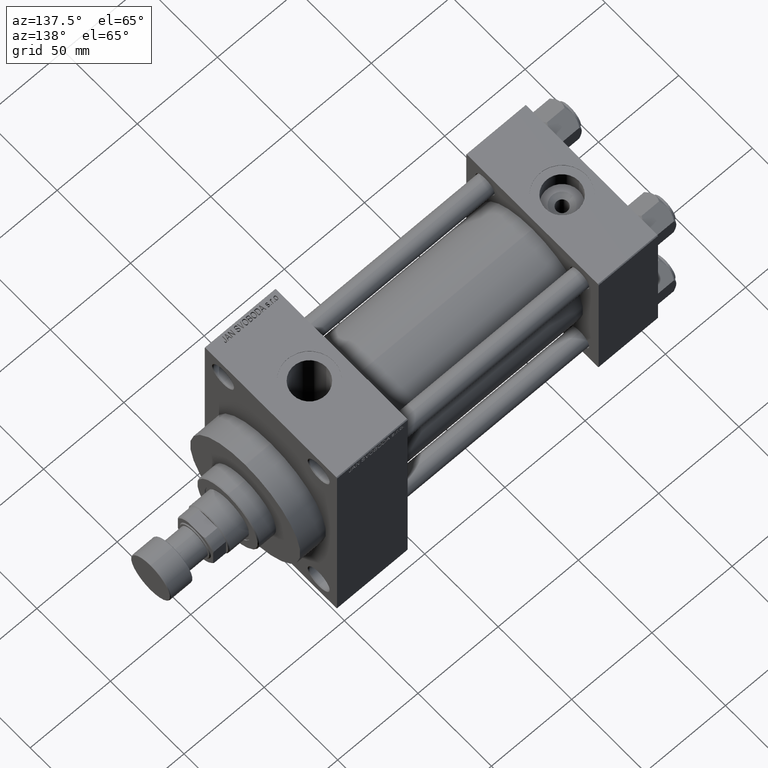
[diagram: clean part render]
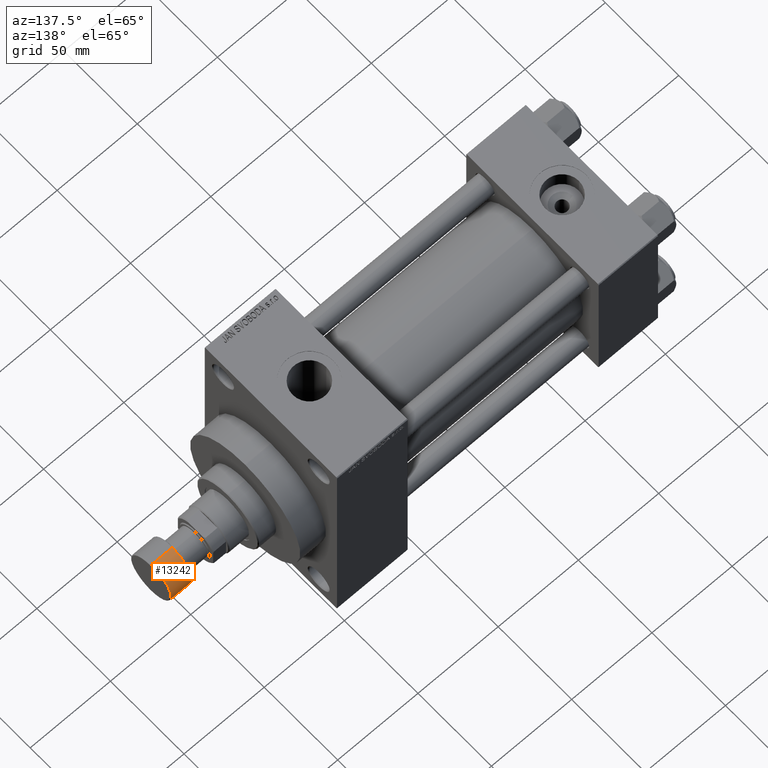
[diagram: same view with one face highlighted and labeled with its STEP entity id]
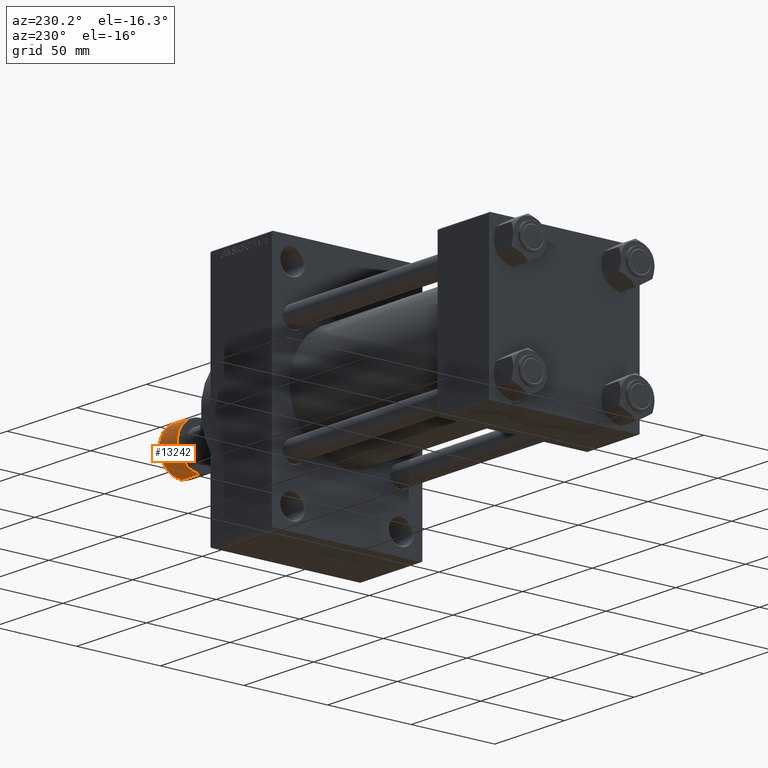
[diagram: same view with one face highlighted and labeled with its STEP entity id]
A machine part, auxiliary view. The second image highlights one B-rep face of the part: STEP entity #13242.
A second angle (auxiliary view) of the same face is appended — the face is thin or edge-on in the first view.
In plain terms, the highlighted cylindrical surface (edge-blend (fillet) strip) has radius 13.5 mm, axis along (1, 0, 0).
Its self-contained STEP definition (entity closure, byte-faithful):
#417 = VERTEX_POINT ( 'NONE', #27431 ) ;
#1819 = ORIENTED_EDGE ( 'NONE', *, *, #33927, .F. ) ;
#2673 = AXIS2_PLACEMENT_3D ( 'NONE', #36068, #10044, #11391 ) ;
#5483 = FACE_OUTER_BOUND ( 'NONE', #9185, .T. ) ;
#5995 = VECTOR ( 'NONE', #10914, 1000.000000000000000 ) ;
#7808 = DIRECTION ( 'NONE',  ( 0.000000000000000000, 0.000000000000000000, 1.000000000000000000 ) ) ;
#9185 = EDGE_LOOP ( 'NONE', ( #9417, #11894, #45409, #1819 ) ) ;
#9417 = ORIENTED_EDGE ( 'NONE', *, *, #40349, .T. ) ;
#9782 = DIRECTION ( 'NONE',  ( -0.000000000000000000, -0.000000000000000000, -1.000000000000000000 ) ) ;
#10044 = DIRECTION ( 'NONE',  ( 0.000000000000000000, 0.000000000000000000, 1.000000000000000000 ) ) ;
#10914 = DIRECTION ( 'NONE',  ( 0.000000000000000000, 0.000000000000000000, 1.000000000000000000 ) ) ;
#11391 = DIRECTION ( 'NONE',  ( 1.000000000000000000, 0.000000000000000000, 0.000000000000000000 ) ) ;
#11894 = ORIENTED_EDGE ( 'NONE', *, *, #23920, .T. ) ;
#13242 = ADVANCED_FACE ( 'NONE', ( #5483 ), #34891, .T. ) ;
#18902 = DIRECTION ( 'NONE',  ( 1.000000000000000000, 0.000000000000000000, 0.000000000000000000 ) ) ;
#20142 = CIRCLE ( 'NONE', #41711, 13.50000000000000000 ) ;
#20881 = CARTESIAN_POINT ( 'NONE',  ( 13.50000000000000000, 0.000000000000000000, -13.50000000000000000 ) ) ;
#21109 = DIRECTION ( 'NONE',  ( 1.000000000000000000, 0.000000000000000000, 0.000000000000000000 ) ) ;
#23920 = EDGE_CURVE ( 'NONE', #417, #42817, #40110, .T. ) ;
#26860 = VERTEX_POINT ( 'NONE', #20881 ) ;
#27149 = DIRECTION ( 'NONE',  ( 0.000000000000000000, 0.000000000000000000, 1.000000000000000000 ) ) ;
#27431 = CARTESIAN_POINT ( 'NONE',  ( -13.50000000000000000, 1.653273178848926867E-15, -13.50000000000000000 ) ) ;
#30781 = VECTOR ( 'NONE', #27149, 1000.000000000000000 ) ;
#31142 = CARTESIAN_POINT ( 'NONE',  ( 13.50000000000000000, 0.000000000000000000, -0.5000000000000004441 ) ) ;
#33927 = EDGE_CURVE ( 'NONE', #26860, #40882, #45488, .T. ) ;
#34891 = CYLINDRICAL_SURFACE ( 'NONE', #2673, 13.50000000000000000 ) ;
#35030 = CARTESIAN_POINT ( 'NONE',  ( -13.50000000000000000, 1.653273178848926867E-15, -0.5000000000000004441 ) ) ;
#36068 = CARTESIAN_POINT ( 'NONE',  ( 0.000000000000000000, 0.000000000000000000, -14.00000000000000000 ) ) ;
#36649 = EDGE_CURVE ( 'NONE', #42817, #40882, #44010, .T. ) ;
#39362 = AXIS2_PLACEMENT_3D ( 'NONE', #46194, #9782, #21109 ) ;
#40110 = LINE ( 'NONE', #43960, #5995 ) ;
#40349 = EDGE_CURVE ( 'NONE', #26860, #417, #20142, .T. ) ;
#40842 = CARTESIAN_POINT ( 'NONE',  ( 0.000000000000000000, 0.000000000000000000, -13.50000000000000000 ) ) ;
#40882 = VERTEX_POINT ( 'NONE', #31142 ) ;
#41711 = AXIS2_PLACEMENT_3D ( 'NONE', #40842, #7808, #18902 ) ;
#42817 = VERTEX_POINT ( 'NONE', #35030 ) ;
#43960 = CARTESIAN_POINT ( 'NONE',  ( -13.50000000000000000, 1.653273178848926867E-15, -14.00000000000000000 ) ) ;
#44010 = CIRCLE ( 'NONE', #39362, 13.50000000000000000 ) ;
#45409 = ORIENTED_EDGE ( 'NONE', *, *, #36649, .T. ) ;
#45488 = LINE ( 'NONE', #46200, #30781 ) ;
#46194 = CARTESIAN_POINT ( 'NONE',  ( 0.000000000000000000, 0.000000000000000000, -0.5000000000000004441 ) ) ;
#46200 = CARTESIAN_POINT ( 'NONE',  ( 13.50000000000000000, 0.000000000000000000, -14.00000000000000000 ) ) ;